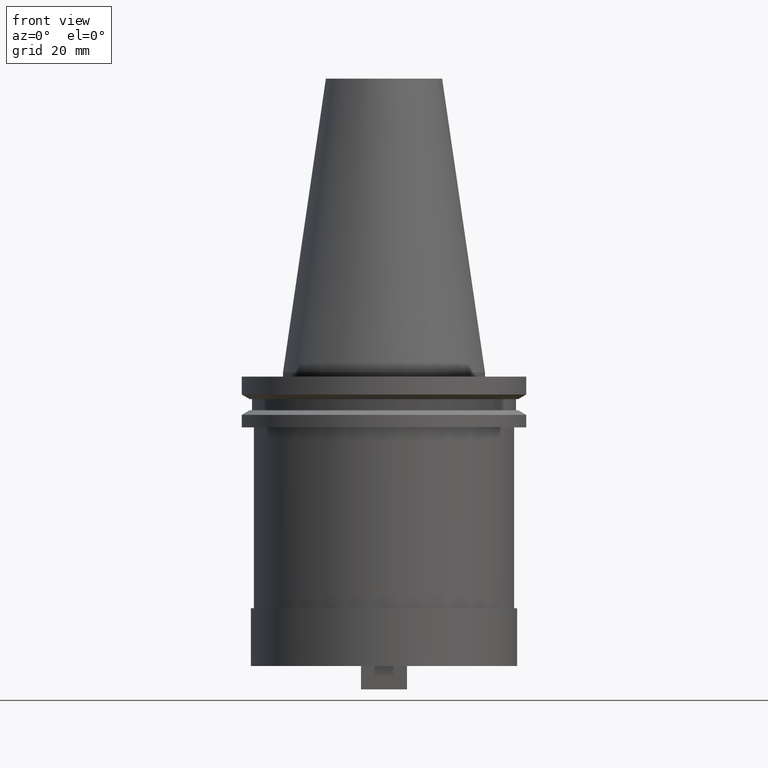
[diagram: clean part render]
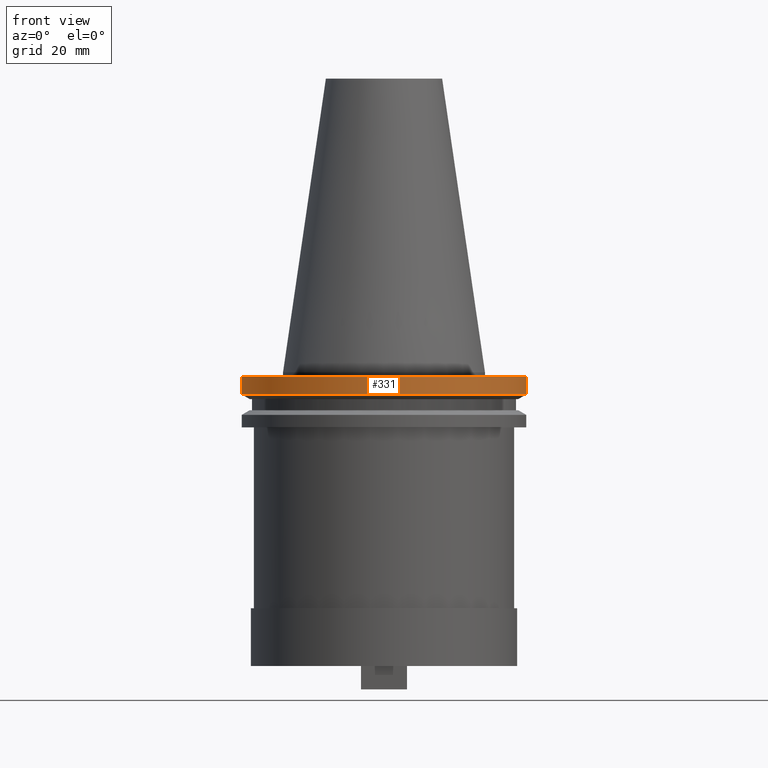
[diagram: same view with one face highlighted and labeled with its STEP entity id]
A machine part, front view. The second image highlights one B-rep face of the part: STEP entity #331.
In plain terms, the highlighted cylindrical surface (partial cylindrical patch) has radius 49.215 mm, axis along (-0, -0, 1).
Its self-contained STEP definition (entity closure, byte-faithful):
#15 = ORIENTED_EDGE ( 'NONE', *, *, #691, .T. ) ;
#16 = DIRECTION ( 'NONE',  ( 1.000000000000000000, 0.000000000000000000, 0.000000000000000000 ) ) ;
#24 = CIRCLE ( 'NONE', #298, 49.21500000000000341 ) ;
#87 = AXIS2_PLACEMENT_3D ( 'NONE', #448, #781, #16 ) ;
#137 = EDGE_CURVE ( 'NONE', #320, #946, #364, .T. ) ;
#186 = CARTESIAN_POINT ( 'NONE',  ( 49.21499999999999631, 0.000000000000000000, 101.5999999999999943 ) ) ;
#221 = CARTESIAN_POINT ( 'NONE',  ( 0.000000000000000000, 0.000000000000000000, -7.652389855251379380 ) ) ;
#254 = AXIS2_PLACEMENT_3D ( 'NONE', #1057, #649, #713 ) ;
#263 = EDGE_CURVE ( 'NONE', #432, #946, #304, .T. ) ;
#266 = DIRECTION ( 'NONE',  ( 1.000000000000000000, 0.000000000000000000, 0.000000000000000000 ) ) ;
#269 = VECTOR ( 'NONE', #908, 1000.000000000000000 ) ;
#298 = AXIS2_PLACEMENT_3D ( 'NONE', #221, #1038, #266 ) ;
#304 = CIRCLE ( 'NONE', #87, 49.21499999999999631 ) ;
#320 = VERTEX_POINT ( 'NONE', #398 ) ;
#323 = CARTESIAN_POINT ( 'NONE',  ( -49.21500000000000341, 6.027099222003699404E-15, -7.652389855251379380 ) ) ;
#331 = ADVANCED_FACE ( 'NONE', ( #472 ), #732, .T. ) ;
#336 = CARTESIAN_POINT ( 'NONE',  ( -49.21499999999999631, 6.027099222003697826E-15, -1.499999999999987566 ) ) ;
#364 = LINE ( 'NONE', #186, #587 ) ;
#398 = CARTESIAN_POINT ( 'NONE',  ( 49.21500000000000341, 0.000000000000000000, -7.652389855251379380 ) ) ;
#402 = EDGE_LOOP ( 'NONE', ( #1037, #15, #921, #786 ) ) ;
#432 = VERTEX_POINT ( 'NONE', #336 ) ;
#439 = VERTEX_POINT ( 'NONE', #323 ) ;
#448 = CARTESIAN_POINT ( 'NONE',  ( 0.000000000000000000, 0.000000000000000000, -1.499999999999987566 ) ) ;
#449 = EDGE_CURVE ( 'NONE', #439, #432, #666, .T. ) ;
#472 = FACE_OUTER_BOUND ( 'NONE', #402, .T. ) ;
#527 = DIRECTION ( 'NONE',  ( -0.000000000000000000, -0.000000000000000000, 1.000000000000000000 ) ) ;
#584 = CARTESIAN_POINT ( 'NONE',  ( 49.21499999999999631, 0.000000000000000000, -1.499999999999987566 ) ) ;
#587 = VECTOR ( 'NONE', #527, 1000.000000000000000 ) ;
#649 = DIRECTION ( 'NONE',  ( -0.000000000000000000, -0.000000000000000000, 1.000000000000000000 ) ) ;
#666 = LINE ( 'NONE', #902, #269 ) ;
#691 = EDGE_CURVE ( 'NONE', #439, #320, #24, .T. ) ;
#713 = DIRECTION ( 'NONE',  ( 1.000000000000000000, 0.000000000000000000, 0.000000000000000000 ) ) ;
#732 = CYLINDRICAL_SURFACE ( 'NONE', #254, 49.21499999999999631 ) ;
#781 = DIRECTION ( 'NONE',  ( -0.000000000000000000, -0.000000000000000000, 1.000000000000000000 ) ) ;
#786 = ORIENTED_EDGE ( 'NONE', *, *, #263, .F. ) ;
#902 = CARTESIAN_POINT ( 'NONE',  ( -49.21499999999999631, 6.027099222003697826E-15, 101.5999999999999943 ) ) ;
#908 = DIRECTION ( 'NONE',  ( -0.000000000000000000, -0.000000000000000000, 1.000000000000000000 ) ) ;
#921 = ORIENTED_EDGE ( 'NONE', *, *, #137, .T. ) ;
#946 = VERTEX_POINT ( 'NONE', #584 ) ;
#1037 = ORIENTED_EDGE ( 'NONE', *, *, #449, .F. ) ;
#1038 = DIRECTION ( 'NONE',  ( -0.000000000000000000, -0.000000000000000000, 1.000000000000000000 ) ) ;
#1057 = CARTESIAN_POINT ( 'NONE',  ( 0.000000000000000000, 0.000000000000000000, 101.5999999999999943 ) ) ;